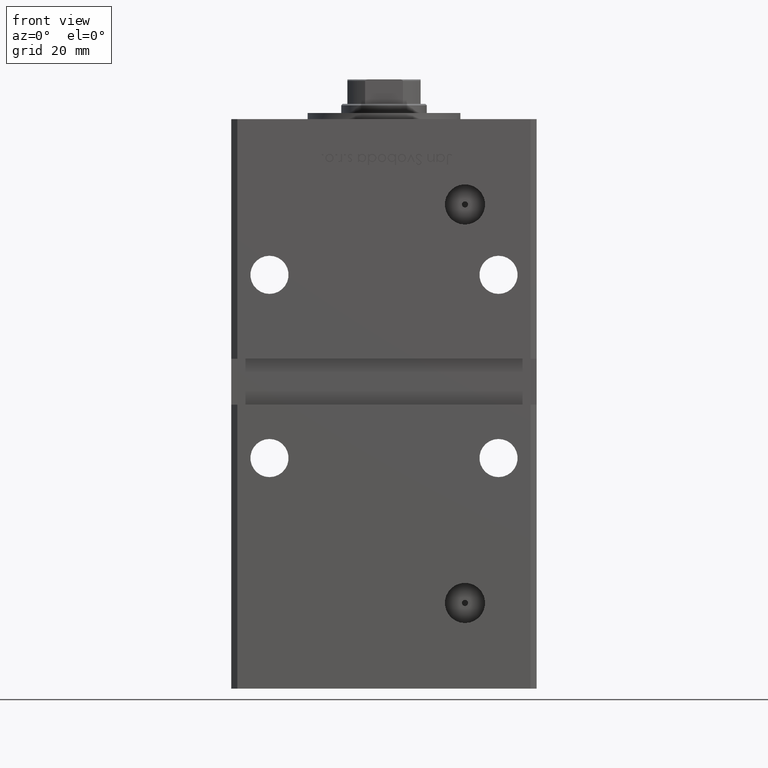
[diagram: clean part render]
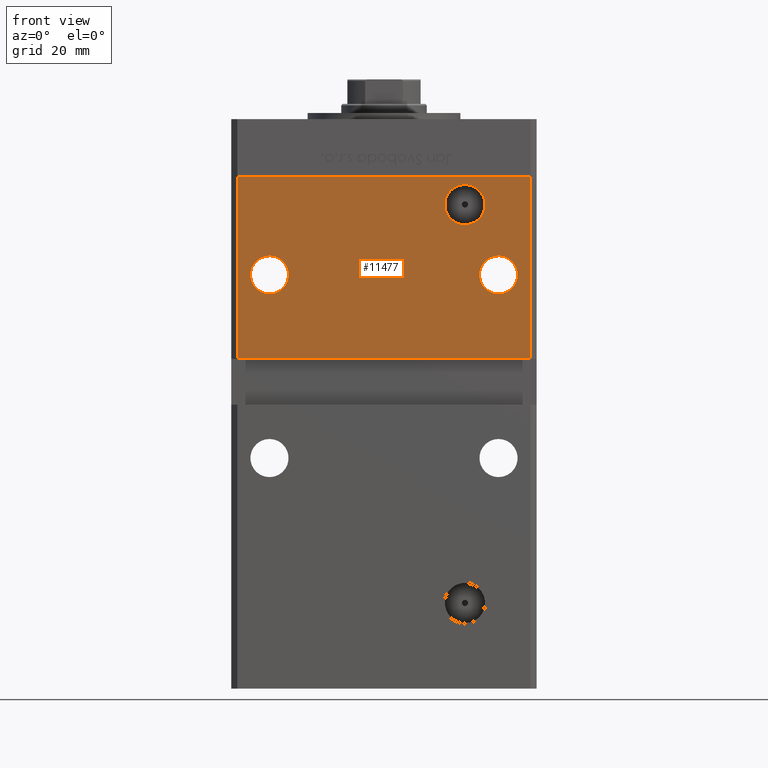
[diagram: same view with one face highlighted and labeled with its STEP entity id]
A machine part, front view. The second image highlights one B-rep face of the part: STEP entity #11477.
In plain terms, the highlighted planar face has unit normal (0, 1, 0).
Its self-contained STEP definition (entity closure, byte-faithful):
#473 = CARTESIAN_POINT ( 'NONE',  ( -49.99999999999998579, -43.50000000000000000, 89.00000000000000000 ) ) ;
#800 = VERTEX_POINT ( 'NONE', #52724 ) ;
#884 = ORIENTED_EDGE ( 'NONE', *, *, #8052, .F. ) ;
#1677 = ORIENTED_EDGE ( 'NONE', *, *, #15779, .T. ) ;
#2115 = VECTOR ( 'NONE', #8750, 1000.000000000000000 ) ;
#3390 = CARTESIAN_POINT ( 'NONE',  ( 26.49999999999997868, -43.50000000000000000, 132.9200000000000443 ) ) ;
#3465 = CARTESIAN_POINT ( 'NONE',  ( -47.99999999999998579, -43.50000000000000000, 148.5000000000000000 ) ) ;
#3884 = EDGE_LOOP ( 'NONE', ( #10024, #24060 ) ) ;
#3955 = FACE_BOUND ( 'NONE', #51245, .T. ) ;
#4186 = ORIENTED_EDGE ( 'NONE', *, *, #33187, .F. ) ;
#4911 = CARTESIAN_POINT ( 'NONE',  ( -47.99999999999998579, -43.50000000000000000, 89.00000000000000000 ) ) ;
#5889 = ORIENTED_EDGE ( 'NONE', *, *, #12249, .T. ) ;
#5913 = EDGE_CURVE ( 'NONE', #22417, #21869, #36454, .T. ) ;
#6753 = CARTESIAN_POINT ( 'NONE',  ( 37.50000000000000000, -43.50000000000000000, 116.4999999999999858 ) ) ;
#6794 = CARTESIAN_POINT ( 'NONE',  ( 47.99999999999998579, -43.50000000000000000, 148.5000000000000000 ) ) ;
#8052 = EDGE_CURVE ( 'NONE', #43361, #37167, #13331, .T. ) ;
#8372 = CARTESIAN_POINT ( 'NONE',  ( -37.50000000000000000, -43.50000000000000000, 116.4999999999999858 ) ) ;
#8527 = CIRCLE ( 'NONE', #35266, 6.250000000000005329 ) ;
#8750 = DIRECTION ( 'NONE',  ( 1.000000000000000000, 0.000000000000000000, 0.000000000000000000 ) ) ;
#8804 = DIRECTION ( 'NONE',  ( -1.000000000000000000, -0.000000000000000000, -0.000000000000000000 ) ) ;
#10024 = ORIENTED_EDGE ( 'NONE', *, *, #5913, .T. ) ;
#10239 = CARTESIAN_POINT ( 'NONE',  ( -37.50000000000000000, -43.50000000000000000, 110.2499999999999858 ) ) ;
#11374 = DIRECTION ( 'NONE',  ( -0.000000000000000000, -0.000000000000000000, -1.000000000000000000 ) ) ;
#11477 = ADVANCED_FACE ( 'NONE', ( #27917, #3955, #36257, #20647 ), #44590, .F. ) ;
#12249 = EDGE_CURVE ( 'NONE', #43361, #35278, #19926, .T. ) ;
#12898 = VERTEX_POINT ( 'NONE', #23930 ) ;
#13331 = LINE ( 'NONE', #25704, #2115 ) ;
#13576 = DIRECTION ( 'NONE',  ( 0.000000000000000000, 1.000000000000000000, 0.000000000000000000 ) ) ;
#15779 = EDGE_CURVE ( 'NONE', #800, #16731, #29766, .T. ) ;
#15907 = CARTESIAN_POINT ( 'NONE',  ( 26.49999999999997868, -43.50000000000000000, 146.0800000000000409 ) ) ;
#16731 = VERTEX_POINT ( 'NONE', #10239 ) ;
#17281 = AXIS2_PLACEMENT_3D ( 'NONE', #50446, #13576, #29980 ) ;
#17690 = DIRECTION ( 'NONE',  ( -0.000000000000000000, 1.000000000000000000, -0.000000000000000000 ) ) ;
#18010 = EDGE_CURVE ( 'NONE', #21869, #22417, #45331, .T. ) ;
#19723 = LINE ( 'NONE', #19986, #40382 ) ;
#19851 = VERTEX_POINT ( 'NONE', #31981 ) ;
#19926 = LINE ( 'NONE', #48703, #30529 ) ;
#19972 = VERTEX_POINT ( 'NONE', #30054 ) ;
#19986 = CARTESIAN_POINT ( 'NONE',  ( 47.99999999999998579, -43.50000000000000000, 148.5000000000000000 ) ) ;
#20120 = ORIENTED_EDGE ( 'NONE', *, *, #34585, .T. ) ;
#20423 = AXIS2_PLACEMENT_3D ( 'NONE', #46729, #17690, #50505 ) ;
#20647 = FACE_BOUND ( 'NONE', #3884, .T. ) ;
#21869 = VERTEX_POINT ( 'NONE', #15907 ) ;
#22417 = VERTEX_POINT ( 'NONE', #3390 ) ;
#23614 = DIRECTION ( 'NONE',  ( 0.000000000000000000, -0.000000000000000000, 1.000000000000000000 ) ) ;
#23879 = DIRECTION ( 'NONE',  ( 0.000000000000000000, 1.000000000000000000, 0.000000000000000000 ) ) ;
#23930 = CARTESIAN_POINT ( 'NONE',  ( 37.50000000000000000, -43.50000000000000000, 110.2499999999999858 ) ) ;
#24060 = ORIENTED_EDGE ( 'NONE', *, *, #18010, .T. ) ;
#24514 = AXIS2_PLACEMENT_3D ( 'NONE', #44333, #23879, #23614 ) ;
#25226 = EDGE_CURVE ( 'NONE', #37167, #19851, #19723, .T. ) ;
#25519 = DIRECTION ( 'NONE',  ( 0.000000000000000000, 1.000000000000000000, 0.000000000000000000 ) ) ;
#25704 = CARTESIAN_POINT ( 'NONE',  ( -47.99999999999998579, -43.50000000000000000, 148.5000000000000000 ) ) ;
#25707 = DIRECTION ( 'NONE',  ( -0.000000000000000000, 1.000000000000000000, -0.000000000000000000 ) ) ;
#27055 = EDGE_CURVE ( 'NONE', #16731, #800, #8527, .T. ) ;
#27847 = AXIS2_PLACEMENT_3D ( 'NONE', #33244, #25707, #45615 ) ;
#27917 = FACE_BOUND ( 'NONE', #42840, .T. ) ;
#28450 = CIRCLE ( 'NONE', #17281, 6.250000000000005329 ) ;
#29319 = ORIENTED_EDGE ( 'NONE', *, *, #27055, .T. ) ;
#29766 = CIRCLE ( 'NONE', #42645, 6.250000000000005329 ) ;
#29980 = DIRECTION ( 'NONE',  ( 0.000000000000000000, 0.000000000000000000, 1.000000000000000000 ) ) ;
#30054 = CARTESIAN_POINT ( 'NONE',  ( 37.50000000000000000, -43.50000000000000000, 122.7500000000000000 ) ) ;
#30529 = VECTOR ( 'NONE', #36323, 1000.000000000000000 ) ;
#31015 = CIRCLE ( 'NONE', #37914, 6.250000000000005329 ) ;
#31981 = CARTESIAN_POINT ( 'NONE',  ( 47.99999999999998579, -43.50000000000000000, 89.00000000000000000 ) ) ;
#32737 = DIRECTION ( 'NONE',  ( 0.000000000000000000, 0.000000000000000000, 1.000000000000000000 ) ) ;
#33187 = EDGE_CURVE ( 'NONE', #19851, #35278, #41374, .T. ) ;
#33244 = CARTESIAN_POINT ( 'NONE',  ( 26.49999999999997868, -43.50000000000000000, 139.5000000000000284 ) ) ;
#34393 = EDGE_CURVE ( 'NONE', #12898, #19972, #28450, .T. ) ;
#34585 = EDGE_CURVE ( 'NONE', #19972, #12898, #31015, .T. ) ;
#35266 = AXIS2_PLACEMENT_3D ( 'NONE', #52933, #51943, #32737 ) ;
#35278 = VERTEX_POINT ( 'NONE', #4911 ) ;
#35299 = VECTOR ( 'NONE', #8804, 1000.000000000000000 ) ;
#36257 = FACE_OUTER_BOUND ( 'NONE', #47697, .T. ) ;
#36323 = DIRECTION ( 'NONE',  ( -0.000000000000000000, -0.000000000000000000, -1.000000000000000000 ) ) ;
#36454 = CIRCLE ( 'NONE', #27847, 6.580000000000002736 ) ;
#37167 = VERTEX_POINT ( 'NONE', #6794 ) ;
#37705 = ORIENTED_EDGE ( 'NONE', *, *, #25226, .F. ) ;
#37914 = AXIS2_PLACEMENT_3D ( 'NONE', #6753, #51427, #48452 ) ;
#40154 = DIRECTION ( 'NONE',  ( 0.000000000000000000, 0.000000000000000000, 1.000000000000000000 ) ) ;
#40382 = VECTOR ( 'NONE', #11374, 1000.000000000000000 ) ;
#41374 = LINE ( 'NONE', #473, #35299 ) ;
#42645 = AXIS2_PLACEMENT_3D ( 'NONE', #8372, #25519, #40154 ) ;
#42840 = EDGE_LOOP ( 'NONE', ( #20120, #49905 ) ) ;
#43361 = VERTEX_POINT ( 'NONE', #3465 ) ;
#44333 = CARTESIAN_POINT ( 'NONE',  ( -47.99999999999998579, -43.50000000000000000, 148.5000000000000000 ) ) ;
#44590 = PLANE ( 'NONE',  #24514 ) ;
#45331 = CIRCLE ( 'NONE', #20423, 6.580000000000002736 ) ;
#45615 = DIRECTION ( 'NONE',  ( 0.000000000000000000, 0.000000000000000000, -1.000000000000000000 ) ) ;
#46729 = CARTESIAN_POINT ( 'NONE',  ( 26.49999999999997868, -43.50000000000000000, 139.5000000000000284 ) ) ;
#47697 = EDGE_LOOP ( 'NONE', ( #5889, #4186, #37705, #884 ) ) ;
#48452 = DIRECTION ( 'NONE',  ( 0.000000000000000000, 0.000000000000000000, 1.000000000000000000 ) ) ;
#48703 = CARTESIAN_POINT ( 'NONE',  ( -47.99999999999998579, -43.50000000000000000, 148.5000000000000000 ) ) ;
#49905 = ORIENTED_EDGE ( 'NONE', *, *, #34393, .T. ) ;
#50446 = CARTESIAN_POINT ( 'NONE',  ( 37.50000000000000000, -43.50000000000000000, 116.4999999999999858 ) ) ;
#50505 = DIRECTION ( 'NONE',  ( 0.000000000000000000, 0.000000000000000000, -1.000000000000000000 ) ) ;
#51245 = EDGE_LOOP ( 'NONE', ( #1677, #29319 ) ) ;
#51427 = DIRECTION ( 'NONE',  ( 0.000000000000000000, 1.000000000000000000, 0.000000000000000000 ) ) ;
#51943 = DIRECTION ( 'NONE',  ( 0.000000000000000000, 1.000000000000000000, 0.000000000000000000 ) ) ;
#52724 = CARTESIAN_POINT ( 'NONE',  ( -37.50000000000000000, -43.50000000000000000, 122.7500000000000000 ) ) ;
#52933 = CARTESIAN_POINT ( 'NONE',  ( -37.50000000000000000, -43.50000000000000000, 116.4999999999999858 ) ) ;